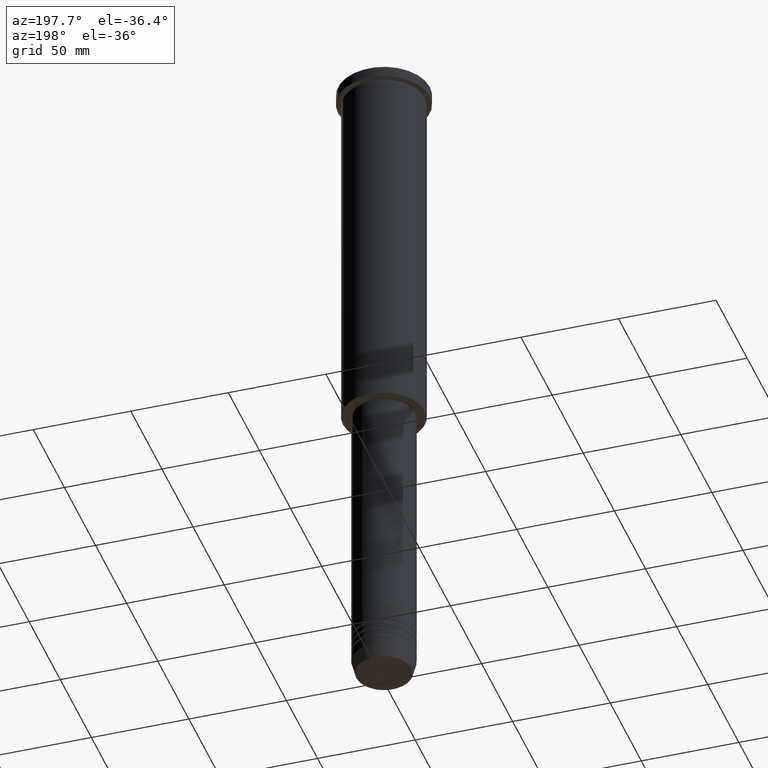
[diagram: clean part render]
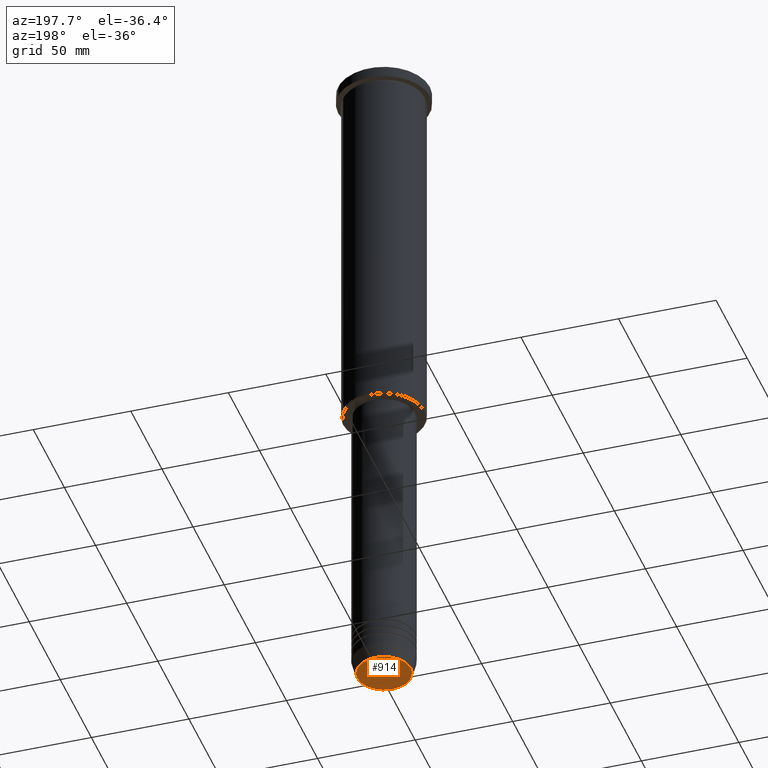
[diagram: same view with one face highlighted and labeled with its STEP entity id]
A machine part, auxiliary view. The second image highlights one B-rep face of the part: STEP entity #914.
In plain terms, the highlighted planar face has unit normal (0, -0, 1).
Its self-contained STEP definition (entity closure, byte-faithful):
#83 = FACE_OUTER_BOUND ( 'NONE', #678, .T. ) ;
#117 = VERTEX_POINT ( 'NONE', #1169 ) ;
#212 = DIRECTION ( 'NONE',  ( 0.000000000000000000, 0.000000000000000000, -1.000000000000000000 ) ) ;
#269 = DIRECTION ( 'NONE',  ( 0.000000000000000000, 0.000000000000000000, -1.000000000000000000 ) ) ;
#306 = VERTEX_POINT ( 'NONE', #805 ) ;
#333 = AXIS2_PLACEMENT_3D ( 'NONE', #1172, #269, #985 ) ;
#372 = CARTESIAN_POINT ( 'NONE',  ( 0.000000000000000000, 0.000000000000000000, -351.0000000000000568 ) ) ;
#383 = PLANE ( 'NONE',  #393 ) ;
#393 = AXIS2_PLACEMENT_3D ( 'NONE', #372, #793, #1168 ) ;
#397 = CIRCLE ( 'NONE', #799, 13.74069215899265828 ) ;
#452 = EDGE_CURVE ( 'NONE', #117, #306, #397, .T. ) ;
#493 = CARTESIAN_POINT ( 'NONE',  ( 0.000000000000000000, 0.000000000000000000, -351.0000000000000568 ) ) ;
#534 = ORIENTED_EDGE ( 'NONE', *, *, #847, .T. ) ;
#678 = EDGE_LOOP ( 'NONE', ( #534, #763 ) ) ;
#741 = DIRECTION ( 'NONE',  ( 1.000000000000000000, 0.000000000000000000, 0.000000000000000000 ) ) ;
#763 = ORIENTED_EDGE ( 'NONE', *, *, #452, .T. ) ;
#793 = DIRECTION ( 'NONE',  ( 0.000000000000000000, -0.000000000000000000, 1.000000000000000000 ) ) ;
#799 = AXIS2_PLACEMENT_3D ( 'NONE', #493, #212, #741 ) ;
#805 = CARTESIAN_POINT ( 'NONE',  ( 13.74069215899265828, 0.000000000000000000, -351.0000000000000568 ) ) ;
#847 = EDGE_CURVE ( 'NONE', #306, #117, #1125, .T. ) ;
#914 = ADVANCED_FACE ( 'NONE', ( #83 ), #383, .F. ) ;
#985 = DIRECTION ( 'NONE',  ( 1.000000000000000000, 0.000000000000000000, 0.000000000000000000 ) ) ;
#1125 = CIRCLE ( 'NONE', #333, 13.74069215899265828 ) ;
#1168 = DIRECTION ( 'NONE',  ( 1.000000000000000000, 0.000000000000000000, 0.000000000000000000 ) ) ;
#1169 = CARTESIAN_POINT ( 'NONE',  ( -13.74069215899265828, 1.712322416342415986E-15, -351.0000000000000568 ) ) ;
#1172 = CARTESIAN_POINT ( 'NONE',  ( 0.000000000000000000, 0.000000000000000000, -351.0000000000000568 ) ) ;